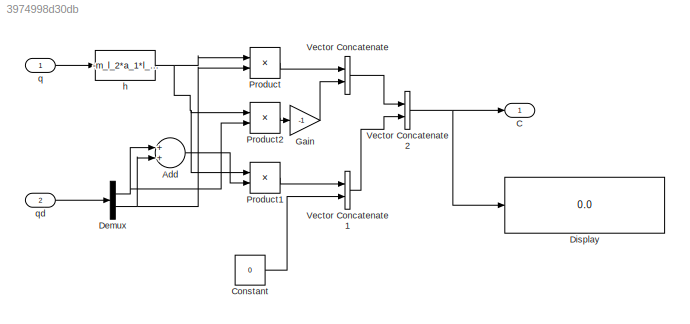
MODEL slx_3974998d30db
KIND model
CONFIG AbsTol = auto
CONFIG FixedStep = auto
CONFIG MaxStep = auto
CONFIG MinStep = auto
CONFIG RelTol = 1e-3
CONFIG SampleTimeConstraint = Unconstrained
CONFIG Solver = ode45
CONFIG SolverMode = Auto
CONFIG SolverName = ode45
CONFIG StartTime = 0.0
CONFIG StopTime = 10.0
BLOCK [Sum] Add
  InputSameDT = off
  OutDataTypeStr = Inherit: Inherit via internal rule
  Ports = [2, 1]
  SaturateOnIntegerOverflow = off
BLOCK [Outport] C
  IconDisplay = Port number
BLOCK [Constant] Constant
  Value = 0
BLOCK [Demux] Demux
  DisplayOption = bar
  Outputs = 2
  Ports = [1, 2]
BLOCK [Display] Display
  Decimation = 1
  Ports = [1]
BLOCK [Gain] Gain
  Gain = -1
  OutDataTypeStr = Inherit: Inherit via internal rule
  ParamDataTypeStr = Inherit: Inherit via internal rule
  SaturateOnIntegerOverflow = off
BLOCK [Product] Product
  InputSameDT = off
  OutDataTypeStr = Inherit: Inherit via internal rule
  Ports = [2, 1]
  RndMeth = Floor
  SaturateOnIntegerOverflow = off
BLOCK [Product] Product1
  InputSameDT = off
  OutDataTypeStr = Inherit: Inherit via internal rule
  Ports = [2, 1]
  RndMeth = Floor
  SaturateOnIntegerOverflow = off
BLOCK [Product] Product2
  InputSameDT = off
  OutDataTypeStr = Inherit: Inherit via internal rule
  Ports = [2, 1]
  RndMeth = Floor
  SaturateOnIntegerOverflow = off
BLOCK [Concatenate] Vector Concatenate
  Ports = [2, 1]
BLOCK [Concatenate] Vector Concatenate1
  Ports = [2, 1]
BLOCK [Concatenate] Vector Concatenate2
  ConcatenateDimension = 2
  Mode = Multidimensional array
  Ports = [2, 1]
BLOCK [Fcn] h
  Expr = -m_l_2*a_1*l_2*sin(u(2))
BLOCK [Inport] q
  IconDisplay = Port number
  PortDimensions = 2
BLOCK [Inport] qd
  IconDisplay = Port number
  Port = 2
  PortDimensions = 2
LINE Add:1 -> Product1:2
LINE Constant:1 -> Vector Concatenate1:2
NET Demux:1 -> Add:1, Product2:2
NET Demux:2 -> Add:2, Product:2
LINE Gain:1 -> Vector Concatenate:2
LINE Product1:1 -> Vector Concatenate1:1
LINE Product2:1 -> Gain:1
LINE Product:1 -> Vector Concatenate:1
LINE Vector Concatenate1:1 -> Vector Concatenate2:2
NET Vector Concatenate2:1 -> C:1, Display:1
LINE Vector Concatenate:1 -> Vector Concatenate2:1
NET h:1 -> Product1:1, Product2:1, Product:1
LINE q:1 -> h:1
LINE qd:1 -> Demux:1
note: NET lines group one-source signal fan-out (src -> all destinations, sorted); 1:1 wires keep LINE
